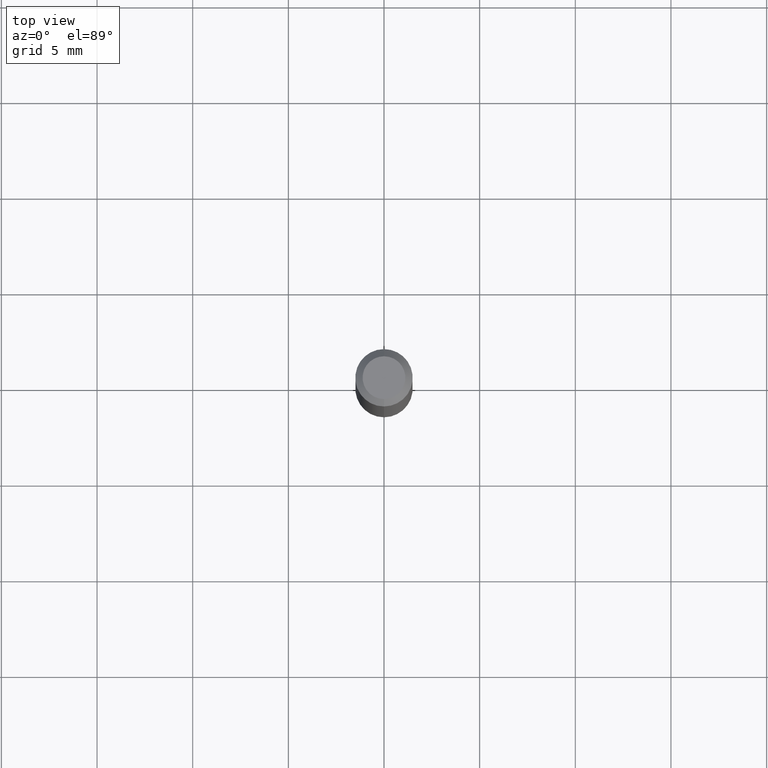
[diagram: clean part render]
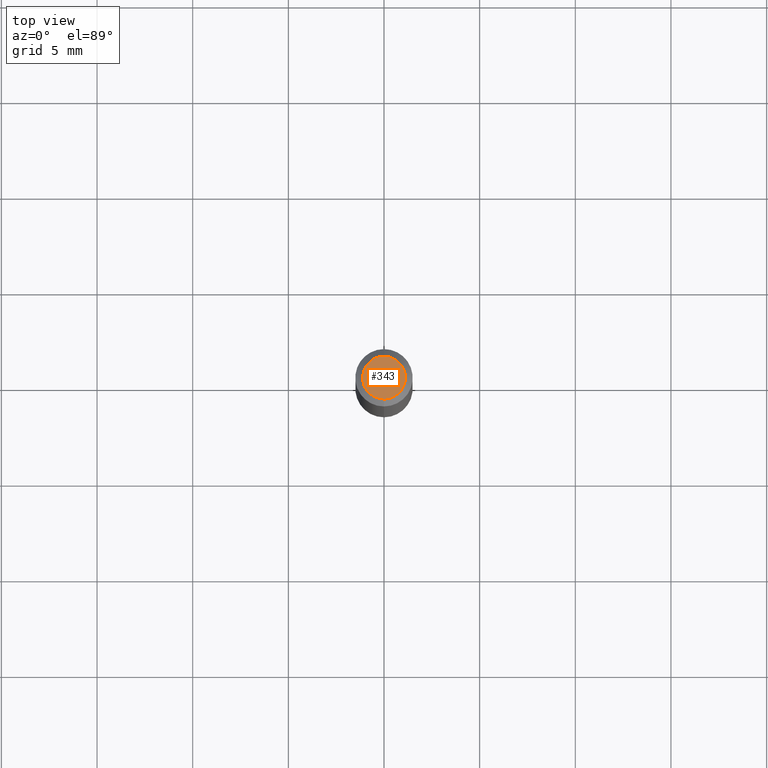
[diagram: same view with one face highlighted and labeled with its STEP entity id]
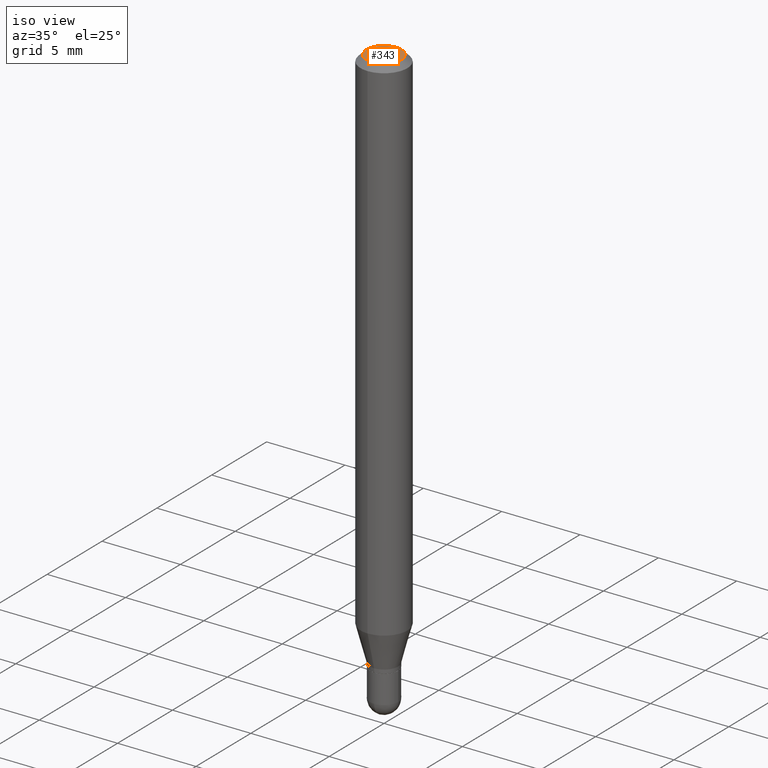
[diagram: same view with one face highlighted and labeled with its STEP entity id]
A machine part, top view. The second image highlights one B-rep face of the part: STEP entity #343.
A second angle (iso view) of the same face is appended — the face is thin or edge-on in the first view.
In plain terms, the highlighted planar face has unit normal (0, -0, -1).
Its self-contained STEP definition (entity closure, byte-faithful):
#42 = CARTESIAN_POINT ( 'NONE',  ( 5.836148012871053116E-46, -8.332200230911702652E-32, -2.386476061043801026E-17 ) ) ;
#46 = CARTESIAN_POINT ( 'NONE',  ( 3.599717260347271507E-16, 0.04404999999999999888, -1.776619958574267450E-16 ) ) ;
#49 = CARTESIAN_POINT ( 'NONE',  ( 3.075995059520799729E-16, 0.04404999999999999888, -1.657296155522077399E-16 ) ) ;
#66 = DIRECTION ( 'NONE',  ( 2.445508718121575324E-29, -3.491424182678518709E-15, -1.000000000000000000 ) ) ;
#88 = DIRECTION ( 'NONE',  ( -2.445508718121575604E-29, 3.491424182678518314E-15, 1.000000000000000000 ) ) ;
#90 = FACE_OUTER_BOUND ( 'NONE', #450, .T. ) ;
#100 = AXIS2_PLACEMENT_3D ( 'NONE', #42, #88, #212 ) ;
#110 = CIRCLE ( 'NONE', #100, 0.04404999999999999888 ) ;
#124 = DIRECTION ( 'NONE',  ( -6.982962677686265133E-15, -1.000000000000000000, 3.491424182678518314E-15 ) ) ;
#167 = EDGE_CURVE ( 'NONE', #234, #303, #110, .T. ) ;
#174 = CARTESIAN_POINT ( 'NONE',  ( -3.536586717851222218E-16, -0.04404999999999999888, 1.299324746365507245E-16 ) ) ;
#192 = DIRECTION ( 'NONE',  ( 6.982962677686265922E-15, 1.000000000000000000, -3.491424182678518709E-15 ) ) ;
#201 = ORIENTED_EDGE ( 'NONE', *, *, #226, .T. ) ;
#212 = DIRECTION ( 'NONE',  ( -6.982962677686265133E-15, -1.000000000000000000, 3.491424182678518314E-15 ) ) ;
#226 = EDGE_CURVE ( 'NONE', #303, #234, #402, .T. ) ;
#234 = VERTEX_POINT ( 'NONE', #174 ) ;
#255 = PLANE ( 'NONE',  #440 ) ;
#285 = CARTESIAN_POINT ( 'NONE',  ( 5.836148012871053116E-46, -8.332200230911702652E-32, -2.386476061043801026E-17 ) ) ;
#288 = AXIS2_PLACEMENT_3D ( 'NONE', #285, #321, #124 ) ;
#303 = VERTEX_POINT ( 'NONE', #46 ) ;
#321 = DIRECTION ( 'NONE',  ( -2.445508718121575604E-29, 3.491424182678518314E-15, 1.000000000000000000 ) ) ;
#343 = ADVANCED_FACE ( 'NONE', ( #90 ), #255, .F. ) ;
#402 = CIRCLE ( 'NONE', #288, 0.04404999999999999888 ) ;
#422 = ORIENTED_EDGE ( 'NONE', *, *, #167, .T. ) ;
#440 = AXIS2_PLACEMENT_3D ( 'NONE', #49, #66, #192 ) ;
#450 = EDGE_LOOP ( 'NONE', ( #201, #422 ) ) ;